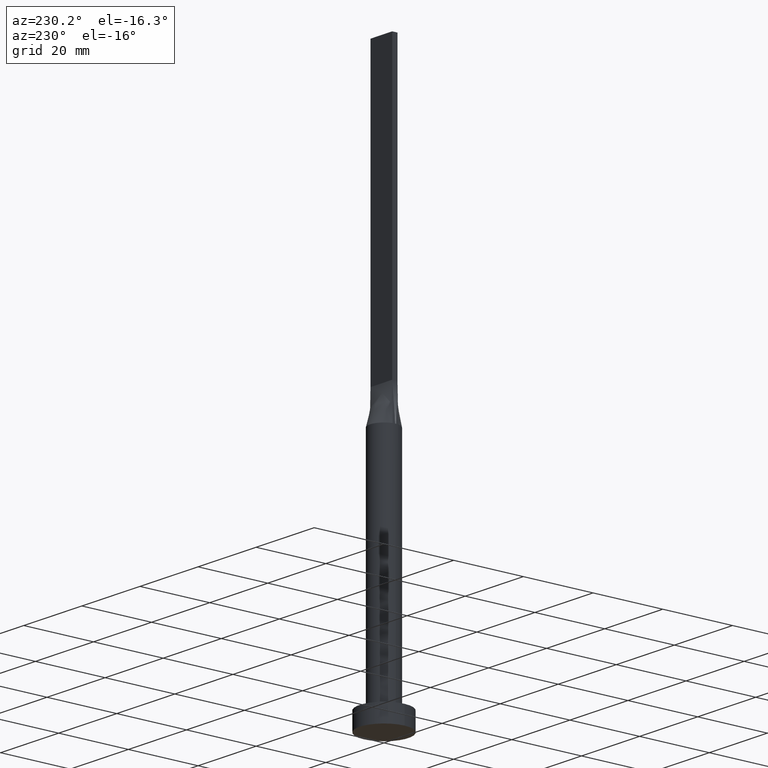
[diagram: clean part render]
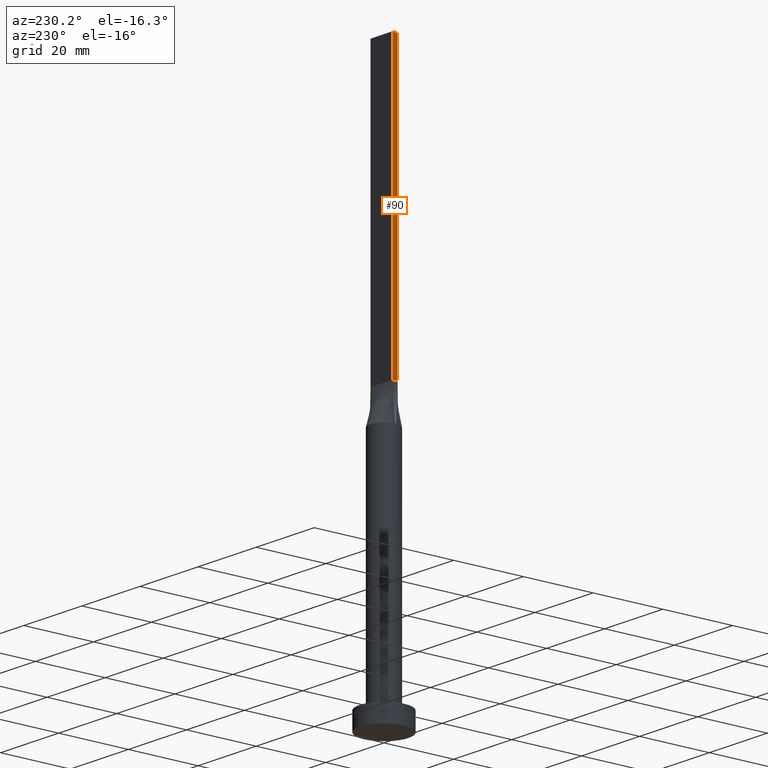
[diagram: same view with one face highlighted and labeled with its STEP entity id]
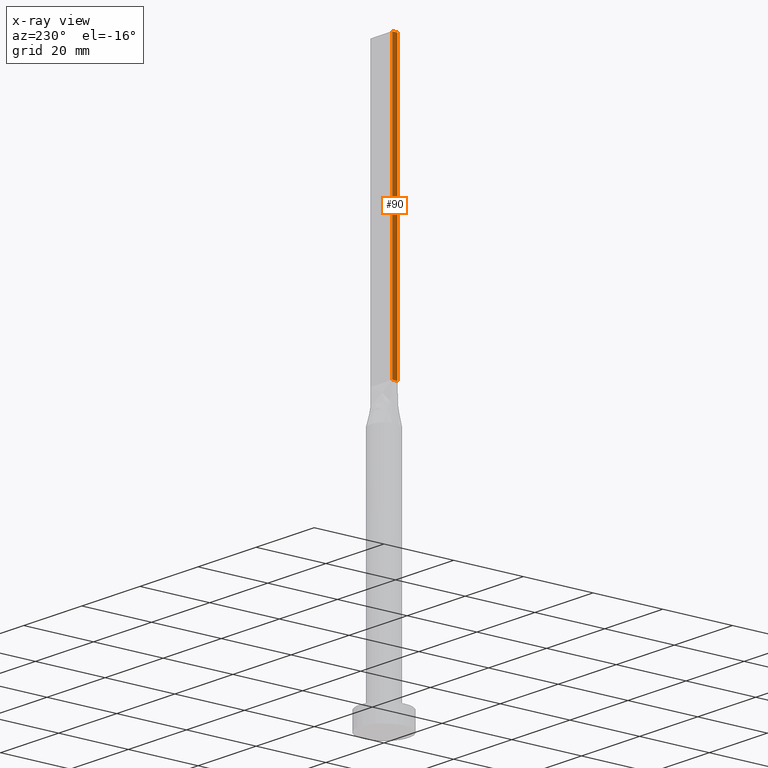
[diagram: x-ray of the same camera — body ghosted, the highlighted face saturated]
A machine part, auxiliary view. The second image highlights one B-rep face of the part: STEP entity #90.
The next image is the same camera in x-ray: the body ghosted, the highlighted face saturated — about 0% of this face is hidden behind the body in this view.
In plain terms, the highlighted planar face has unit normal (1, 0, -0).
Its self-contained STEP definition (entity closure, byte-faithful):
#9 = DIRECTION ( 'NONE',  ( 1.000000000000000000, 0.000000000000000000, -0.000000000000000000 ) ) ;
#22 = CARTESIAN_POINT ( 'NONE',  ( -3.750000000000000000, -0.7499999999999993339, 80.00000000000000000 ) ) ;
#25 = VECTOR ( 'NONE', #397, 1000.000000000000000 ) ;
#30 = CARTESIAN_POINT ( 'NONE',  ( -3.750000000000000000, -0.7499999999999993339, 160.0000000000000000 ) ) ;
#40 = CARTESIAN_POINT ( 'NONE',  ( -3.750000000000000000, 0.7500000000000002220, 80.00000000000000000 ) ) ;
#42 = DIRECTION ( 'NONE',  ( -0.000000000000000000, 0.000000000000000000, -1.000000000000000000 ) ) ;
#53 = FACE_OUTER_BOUND ( 'NONE', #262, .T. ) ;
#59 = VECTOR ( 'NONE', #150, 1000.000000000000000 ) ;
#60 = DIRECTION ( 'NONE',  ( 0.000000000000000000, -1.000000000000000000, 0.000000000000000000 ) ) ;
#72 = LINE ( 'NONE', #158, #59 ) ;
#90 = ADVANCED_FACE ( 'NONE', ( #53 ), #233, .F. ) ;
#124 = CARTESIAN_POINT ( 'NONE',  ( -3.750000000000000000, -0.7499999999999993339, 160.0000000000000000 ) ) ;
#136 = VECTOR ( 'NONE', #337, 1000.000000000000000 ) ;
#137 = ORIENTED_EDGE ( 'NONE', *, *, #270, .T. ) ;
#150 = DIRECTION ( 'NONE',  ( 0.000000000000000000, -1.000000000000000000, 0.000000000000000000 ) ) ;
#157 = ORIENTED_EDGE ( 'NONE', *, *, #224, .F. ) ;
#158 = CARTESIAN_POINT ( 'NONE',  ( -3.750000000000000000, 0.7500000000000002220, 160.0000000000000000 ) ) ;
#213 = LINE ( 'NONE', #124, #25 ) ;
#219 = VERTEX_POINT ( 'NONE', #22 ) ;
#224 = EDGE_CURVE ( 'NONE', #529, #571, #72, .T. ) ;
#233 = PLANE ( 'NONE',  #398 ) ;
#262 = EDGE_LOOP ( 'NONE', ( #342, #394, #157, #137 ) ) ;
#270 = EDGE_CURVE ( 'NONE', #529, #374, #467, .T. ) ;
#282 = LINE ( 'NONE', #469, #544 ) ;
#304 = EDGE_CURVE ( 'NONE', #374, #219, #282, .T. ) ;
#337 = DIRECTION ( 'NONE',  ( -0.000000000000000000, -0.000000000000000000, -1.000000000000000000 ) ) ;
#342 = ORIENTED_EDGE ( 'NONE', *, *, #304, .T. ) ;
#374 = VERTEX_POINT ( 'NONE', #40 ) ;
#376 = EDGE_CURVE ( 'NONE', #571, #219, #213, .T. ) ;
#394 = ORIENTED_EDGE ( 'NONE', *, *, #376, .F. ) ;
#397 = DIRECTION ( 'NONE',  ( -0.000000000000000000, -0.000000000000000000, -1.000000000000000000 ) ) ;
#398 = AXIS2_PLACEMENT_3D ( 'NONE', #410, #9, #42 ) ;
#410 = CARTESIAN_POINT ( 'NONE',  ( -3.750000000000000000, 0.7500000000000002220, 160.0000000000000000 ) ) ;
#420 = CARTESIAN_POINT ( 'NONE',  ( -3.750000000000000000, 0.7500000000000002220, 160.0000000000000000 ) ) ;
#463 = CARTESIAN_POINT ( 'NONE',  ( -3.750000000000000000, 0.7500000000000002220, 160.0000000000000000 ) ) ;
#467 = LINE ( 'NONE', #420, #136 ) ;
#469 = CARTESIAN_POINT ( 'NONE',  ( -3.750000000000000000, 0.7500000000000002220, 80.00000000000000000 ) ) ;
#529 = VERTEX_POINT ( 'NONE', #463 ) ;
#544 = VECTOR ( 'NONE', #60, 1000.000000000000000 ) ;
#571 = VERTEX_POINT ( 'NONE', #30 ) ;